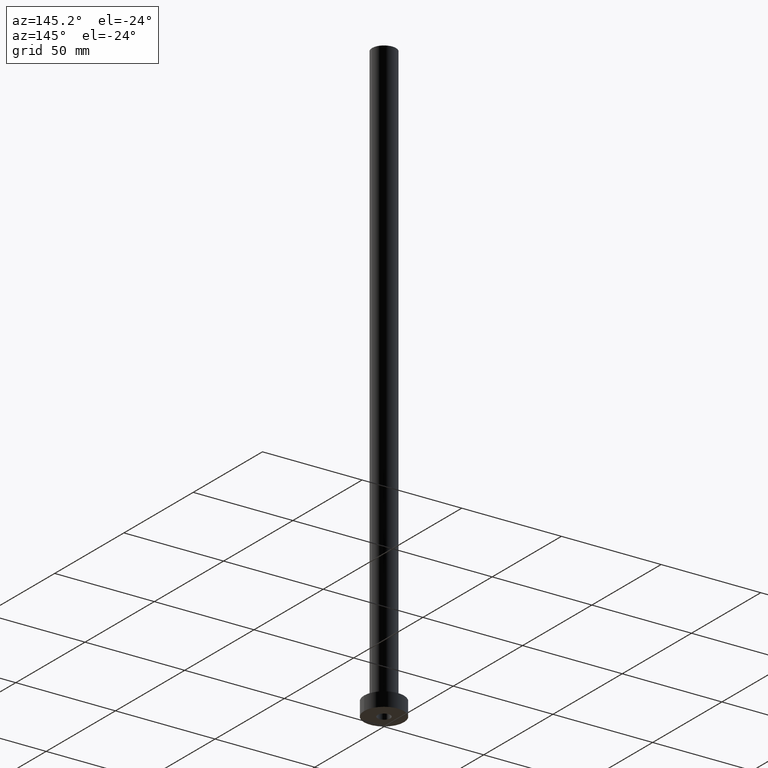
[diagram: clean part render]
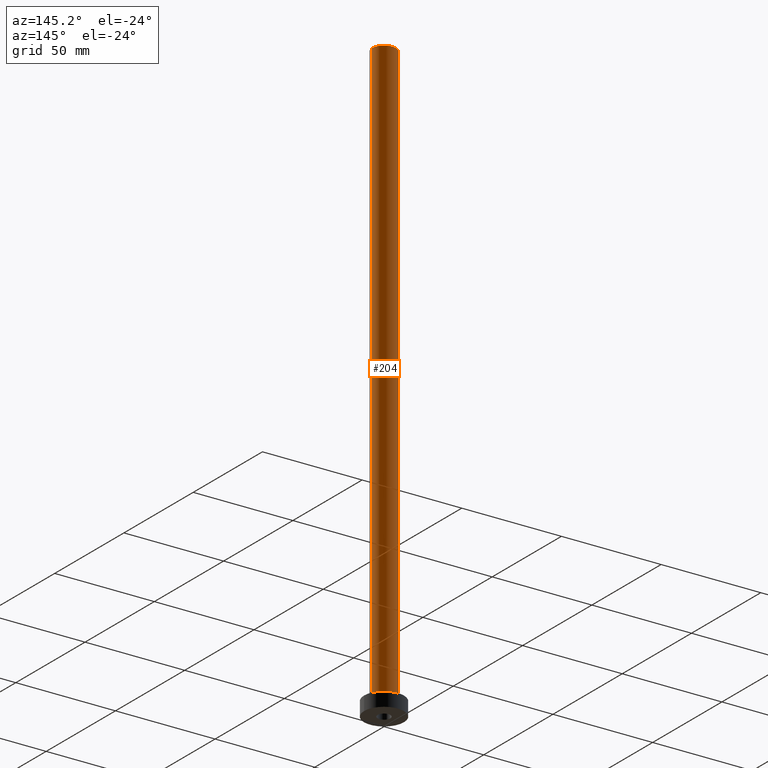
[diagram: same view with one face highlighted and labeled with its STEP entity id]
A machine part, auxiliary view. The second image highlights one B-rep face of the part: STEP entity #204.
In plain terms, the highlighted cylindrical surface (edge-blend (fillet) strip) has radius 6 mm, axis along (-0, -0, -1).
Its self-contained STEP definition (entity closure, byte-faithful):
#10 = DIRECTION ( 'NONE',  ( -0.000000000000000000, -0.000000000000000000, -1.000000000000000000 ) ) ;
#43 = CIRCLE ( 'NONE', #293, 6.000000000000000888 ) ;
#47 = LINE ( 'NONE', #275, #180 ) ;
#77 = DIRECTION ( 'NONE',  ( -1.000000000000000000, 0.000000000000000000, 0.000000000000000000 ) ) ;
#85 = EDGE_CURVE ( 'NONE', #304, #261, #433, .T. ) ;
#89 = ORIENTED_EDGE ( 'NONE', *, *, #411, .T. ) ;
#100 = EDGE_LOOP ( 'NONE', ( #257, #89, #429, #202 ) ) ;
#108 = CARTESIAN_POINT ( 'NONE',  ( 0.000000000000000000, 0.000000000000000000, 7.500000000000007105 ) ) ;
#141 = CARTESIAN_POINT ( 'NONE',  ( -6.000000000000000888, 0.000000000000000000, 7.500000000000007105 ) ) ;
#145 = DIRECTION ( 'NONE',  ( -0.000000000000000000, -0.000000000000000000, -1.000000000000000000 ) ) ;
#147 = FACE_OUTER_BOUND ( 'NONE', #100, .T. ) ;
#149 = VERTEX_POINT ( 'NONE', #141 ) ;
#174 = DIRECTION ( 'NONE',  ( -0.000000000000000000, -0.000000000000000000, -1.000000000000000000 ) ) ;
#176 = CYLINDRICAL_SURFACE ( 'NONE', #381, 6.000000000000000888 ) ;
#180 = VECTOR ( 'NONE', #10, 1000.000000000000000 ) ;
#200 = CARTESIAN_POINT ( 'NONE',  ( 0.000000000000000000, 0.000000000000000000, 300.0000000000000000 ) ) ;
#202 = ORIENTED_EDGE ( 'NONE', *, *, #401, .F. ) ;
#203 = CARTESIAN_POINT ( 'NONE',  ( -6.000000000000000888, 0.000000000000000000, 300.0000000000000000 ) ) ;
#204 = ADVANCED_FACE ( 'NONE', ( #147 ), #176, .T. ) ;
#257 = ORIENTED_EDGE ( 'NONE', *, *, #85, .F. ) ;
#261 = VERTEX_POINT ( 'NONE', #312 ) ;
#262 = VERTEX_POINT ( 'NONE', #386 ) ;
#263 = AXIS2_PLACEMENT_3D ( 'NONE', #200, #339, #445 ) ;
#275 = CARTESIAN_POINT ( 'NONE',  ( 6.000000000000000888, 7.347880794884120722E-16, 300.0000000000000000 ) ) ;
#293 = AXIS2_PLACEMENT_3D ( 'NONE', #108, #361, #392 ) ;
#304 = VERTEX_POINT ( 'NONE', #360 ) ;
#312 = CARTESIAN_POINT ( 'NONE',  ( -6.000000000000000888, 0.000000000000000000, 300.0000000000000000 ) ) ;
#313 = LINE ( 'NONE', #203, #376 ) ;
#339 = DIRECTION ( 'NONE',  ( 0.000000000000000000, 0.000000000000000000, 1.000000000000000000 ) ) ;
#360 = CARTESIAN_POINT ( 'NONE',  ( 6.000000000000000888, 7.347880794884120722E-16, 300.0000000000000000 ) ) ;
#361 = DIRECTION ( 'NONE',  ( 0.000000000000000000, 0.000000000000000000, 1.000000000000000000 ) ) ;
#376 = VECTOR ( 'NONE', #174, 1000.000000000000000 ) ;
#381 = AXIS2_PLACEMENT_3D ( 'NONE', #422, #145, #77 ) ;
#386 = CARTESIAN_POINT ( 'NONE',  ( 6.000000000000000888, 7.347880794884120722E-16, 7.500000000000007105 ) ) ;
#392 = DIRECTION ( 'NONE',  ( 1.000000000000000000, 0.000000000000000000, 0.000000000000000000 ) ) ;
#401 = EDGE_CURVE ( 'NONE', #261, #149, #313, .T. ) ;
#411 = EDGE_CURVE ( 'NONE', #304, #262, #47, .T. ) ;
#412 = EDGE_CURVE ( 'NONE', #262, #149, #43, .T. ) ;
#422 = CARTESIAN_POINT ( 'NONE',  ( 0.000000000000000000, 0.000000000000000000, 300.0000000000000000 ) ) ;
#429 = ORIENTED_EDGE ( 'NONE', *, *, #412, .T. ) ;
#433 = CIRCLE ( 'NONE', #263, 6.000000000000000888 ) ;
#445 = DIRECTION ( 'NONE',  ( 1.000000000000000000, 0.000000000000000000, 0.000000000000000000 ) ) ;